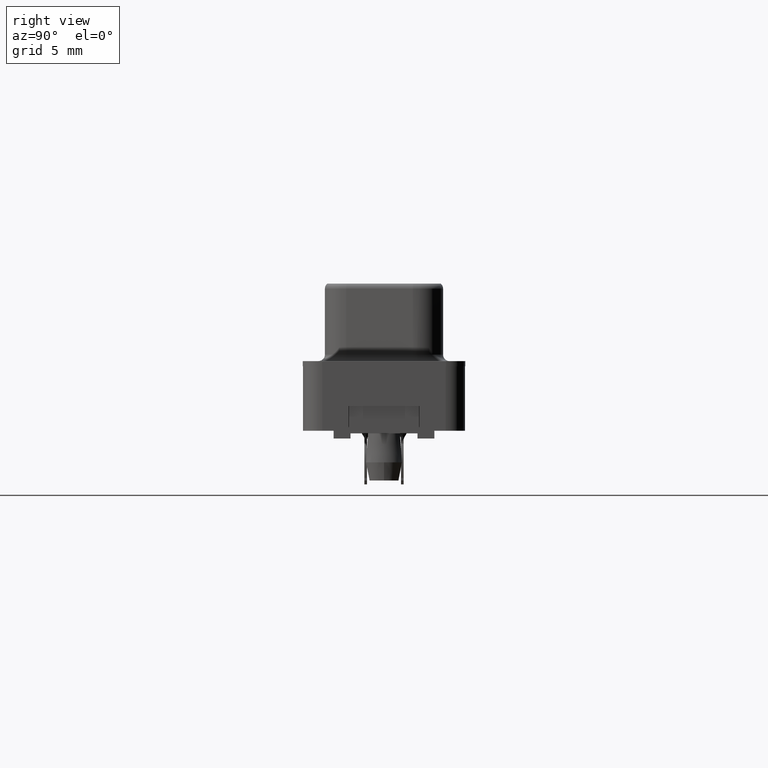
[diagram: clean part render]
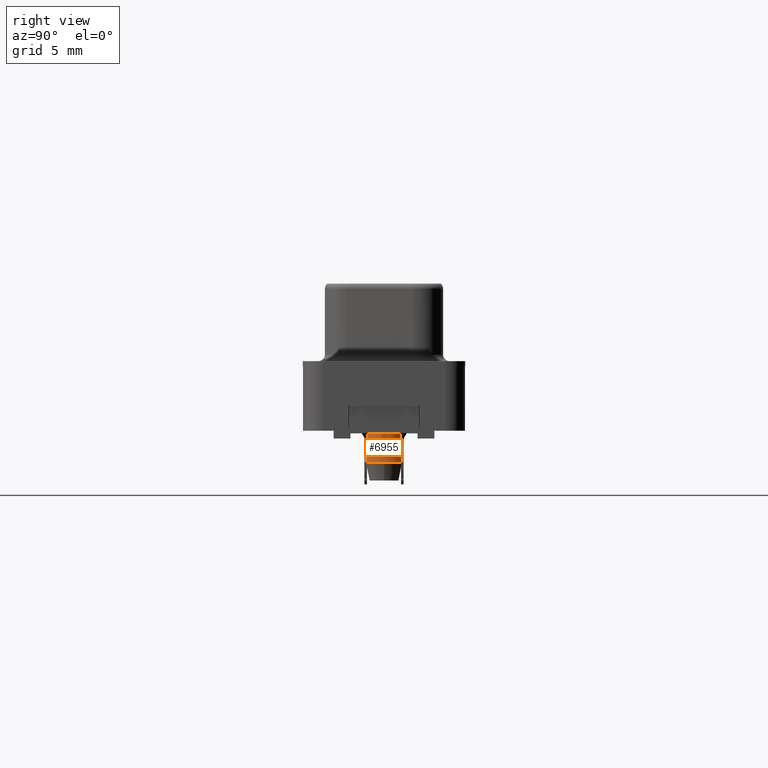
[diagram: same view with one face highlighted and labeled with its STEP entity id]
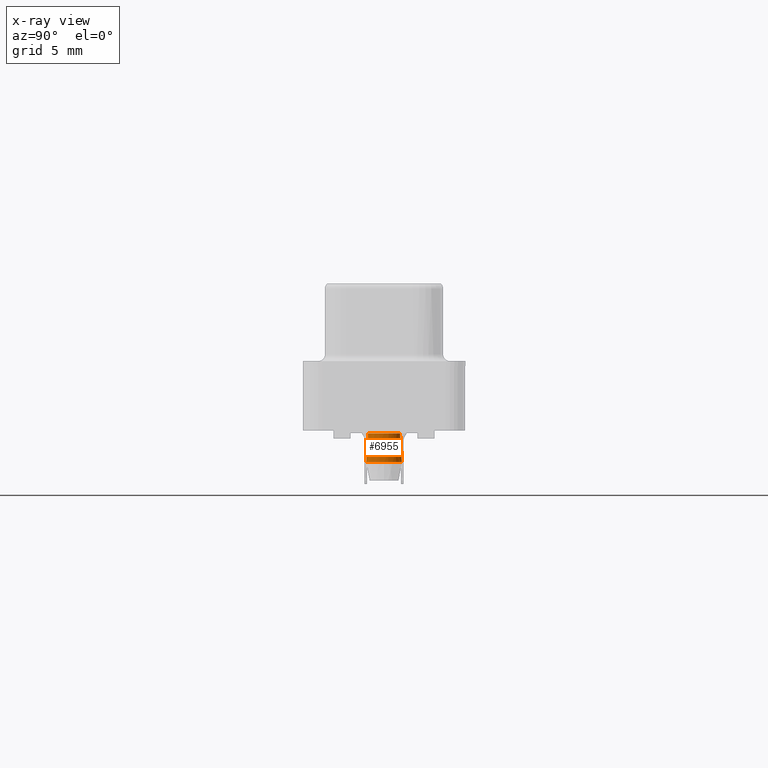
[diagram: x-ray of the same camera — body ghosted, the highlighted face saturated]
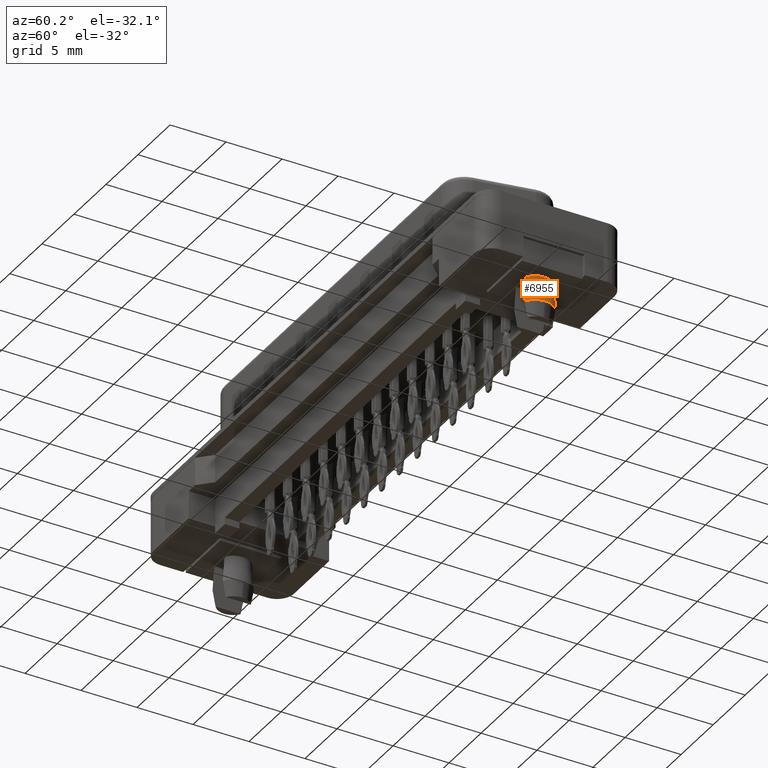
[diagram: same view with one face highlighted and labeled with its STEP entity id]
A machine part, right view. The second image highlights one B-rep face of the part: STEP entity #6955.
The next image is the same camera in x-ray: the body ghosted, the highlighted face saturated — about 0% of this face is hidden behind the body in this view.
A second angle (auxiliary view) of the same face is appended — the face is thin or edge-on in the first view.
In plain terms, the highlighted conical surface has half-angle 3.18 deg.
Its self-contained STEP definition (entity closure, byte-faithful):
#417 = CARTESIAN_POINT ( 'NONE',  ( 0.7999999999999999334, -1.348794344761409025, -6.877570985920063329 ) ) ;
#882 = DIRECTION ( 'NONE',  ( -0.0000000000000000000, -0.0000000000000000000, 1.000000000000000000 ) ) ;
#1329 = CARTESIAN_POINT ( 'NONE',  ( 0.7999999999999999334, 1.312673071574539829, -6.318354085397346331 ) ) ;
#2057 = DIRECTION ( 'NONE',  ( 1.000000000000000000, 0.0000000000000000000, 0.0000000000000000000 ) ) ;
#2190 = EDGE_CURVE ( 'NONE', #8345, #4882, #11026, .T. ) ;
#2403 = EDGE_CURVE ( 'NONE', #22250, #4882, #3022, .T. ) ;
#2554 = AXIS2_PLACEMENT_3D ( 'NONE', #14334, #882, #10581 ) ;
#3022 = CIRCLE ( 'NONE', #17879, 1.475000000000000089 ) ;
#3479 = CARTESIAN_POINT ( 'NONE',  ( 0.7999999999999999334, -1.239203373139373232, -5.200000000000000178 ) ) ;
#3622 = VERTEX_POINT ( 'NONE', #22835 ) ;
#4075 = DIRECTION ( 'NONE',  ( 1.000000000000000000, 0.0000000000000000000, 0.0000000000000000000 ) ) ;
#4452 = CARTESIAN_POINT ( 'NONE',  ( 0.7999999999999999334, 1.239203373139373232, -5.200000000000000178 ) ) ;
#4882 = VERTEX_POINT ( 'NONE', #4452 ) ;
#5259 = DIRECTION ( 'NONE',  ( 0.0000000000000000000, 0.0000000000000000000, -1.000000000000000000 ) ) ;
#5664 = ORIENTED_EDGE ( 'NONE', *, *, #11493, .T. ) ;
#6224 = ORIENTED_EDGE ( 'NONE', *, *, #19209, .T. ) ;
#6394 = ORIENTED_EDGE ( 'NONE', *, *, #2190, .T. ) ;
#6955 = ADVANCED_FACE ( 'NONE', ( #13171 ), #12013, .T. ) ;
#7232 = CARTESIAN_POINT ( 'NONE',  ( 0.7999999999999999334, 1.276178856102543113, -5.759161069698628843 ) ) ;
#7791 = ORIENTED_EDGE ( 'NONE', *, *, #2403, .F. ) ;
#8345 = VERTEX_POINT ( 'NONE', #18846 ) ;
#9481 = CARTESIAN_POINT ( 'NONE',  ( 0.0000000000000000000, 0.0000000000000000000, -7.450000000000000178 ) ) ;
#9738 = CARTESIAN_POINT ( 'NONE',  ( 0.7999999999999999334, -1.342087605635632341, -6.773739599713841208 ) ) ;
#9760 = CIRCLE ( 'NONE', #20211, 1.600000000000000089 ) ;
#10554 = ORIENTED_EDGE ( 'NONE', *, *, #19488, .T. ) ;
#10581 = DIRECTION ( 'NONE',  ( 1.000000000000000000, 0.0000000000000000000, 0.0000000000000000000 ) ) ;
#11026 = B_SPLINE_CURVE_WITH_KNOTS ( 'NONE', 3,
 ( #24496, #12642, #18555, #20317, #1329, #7232, #14769 ),
 .UNSPECIFIED., .F., .F.,
 ( 4, 3, 4 ),
 ( 0.002397952209147178378, 0.002971565672696852012, 0.004652712825744561090 ),
 .UNSPECIFIED. ) ;
#11172 = CARTESIAN_POINT ( 'NONE',  ( 0.7999999999999999334, -1.299103800268465836, -6.110701370079061334 ) ) ;
#11493 = EDGE_CURVE ( 'NONE', #22250, #24691, #24146, .T. ) ;
#12013 = CONICAL_SURFACE ( 'NONE', #21265, 1.600000000000000089, 0.05549850524571679766 ) ;
#12642 = CARTESIAN_POINT ( 'NONE',  ( 0.7999999999999999334, 1.373400028926603289, -7.259187662956978926 ) ) ;
#13171 = FACE_OUTER_BOUND ( 'NONE', #16879, .T. ) ;
#13298 = CARTESIAN_POINT ( 'NONE',  ( 0.0000000000000000000, 0.0000000000000000000, -7.450000000000000178 ) ) ;
#14334 = CARTESIAN_POINT ( 'NONE',  ( 0.0000000000000000000, 0.0000000000000000000, -7.450000000000000178 ) ) ;
#14769 = CARTESIAN_POINT ( 'NONE',  ( 0.7999999999999999334, 1.239203373139373232, -5.200000000000000178 ) ) ;
#15385 = DIRECTION ( 'NONE',  ( -0.0000000000000000000, -0.0000000000000000000, 1.000000000000000000 ) ) ;
#16427 = CARTESIAN_POINT ( 'NONE',  ( 0.7999999999999999334, -1.385640646055101843, -7.450000000000000178 ) ) ;
#16879 = EDGE_LOOP ( 'NONE', ( #7791, #5664, #6224, #10554, #6394 ) ) ;
#16939 = CARTESIAN_POINT ( 'NONE',  ( 0.7999999999999999334, -1.385640646055101843, -7.450000000000000178 ) ) ;
#17395 = CARTESIAN_POINT ( 'NONE',  ( 0.7999999999999999334, -1.361119059920752328, -7.068377909462546071 ) ) ;
#17646 = CARTESIAN_POINT ( 'NONE',  ( 0.7999999999999999334, -1.269313514969198975, -5.655340073072554041 ) ) ;
#17879 = AXIS2_PLACEMENT_3D ( 'NONE', #18924, #15385, #4075 ) ;
#18247 = CARTESIAN_POINT ( 'NONE',  ( 0.7999999999999999334, -1.239203373139373232, -5.200000000000000178 ) ) ;
#18555 = CARTESIAN_POINT ( 'NONE',  ( 0.7999999999999999334, 1.361119059920799845, -7.068377909462543407 ) ) ;
#18846 = CARTESIAN_POINT ( 'NONE',  ( 0.7999999999999999334, 1.385640646055101843, -7.450000000000000178 ) ) ;
#18924 = CARTESIAN_POINT ( 'NONE',  ( 0.0000000000000000000, 0.0000000000000000000, -5.200000000000000178 ) ) ;
#19075 = DIRECTION ( 'NONE',  ( -1.000000000000000000, 0.0000000000000000000, 0.0000000000000000000 ) ) ;
#19209 = EDGE_CURVE ( 'NONE', #24691, #3622, #9760, .T. ) ;
#19404 = CIRCLE ( 'NONE', #2554, 1.600000000000000089 ) ;
#19488 = EDGE_CURVE ( 'NONE', #3622, #8345, #19404, .T. ) ;
#20211 = AXIS2_PLACEMENT_3D ( 'NONE', #9481, #20688, #2057 ) ;
#20317 = CARTESIAN_POINT ( 'NONE',  ( 0.7999999999999999334, 1.348794344761456765, -6.877570985920060664 ) ) ;
#20688 = DIRECTION ( 'NONE',  ( -0.0000000000000000000, -0.0000000000000000000, 1.000000000000000000 ) ) ;
#21265 = AXIS2_PLACEMENT_3D ( 'NONE', #13298, #5259, #19075 ) ;
#21318 = CARTESIAN_POINT ( 'NONE',  ( 0.7999999999999999334, -1.373400028926603289, -7.259187662956978926 ) ) ;
#22250 = VERTEX_POINT ( 'NONE', #18247 ) ;
#22835 = CARTESIAN_POINT ( 'NONE',  ( 1.600000000000000089, 0.0000000000000000000, -7.450000000000000178 ) ) ;
#23209 = CARTESIAN_POINT ( 'NONE',  ( 0.7999999999999999334, -1.328634646746071901, -6.566079379970895857 ) ) ;
#23344 = CARTESIAN_POINT ( 'NONE',  ( 0.7999999999999999334, -1.335367905649196718, -6.669909049794844336 ) ) ;
#24146 = B_SPLINE_CURVE_WITH_KNOTS ( 'NONE', 3,
 ( #3479, #17646, #11172, #23209, #23344, #9738, #417, #17395, #21318, #16939 ),
 .UNSPECIFIED., .F., .F.,
 ( 4, 3, 3, 4 ),
 ( 0.001290420621860329312, 0.002659423906506794711, 0.002971566944148802247, 0.003545180249242466282 ),
 .UNSPECIFIED. ) ;
#24496 = CARTESIAN_POINT ( 'NONE',  ( 0.7999999999999999334, 1.385640646055101843, -7.450000000000000178 ) ) ;
#24691 = VERTEX_POINT ( 'NONE', #16427 ) ;